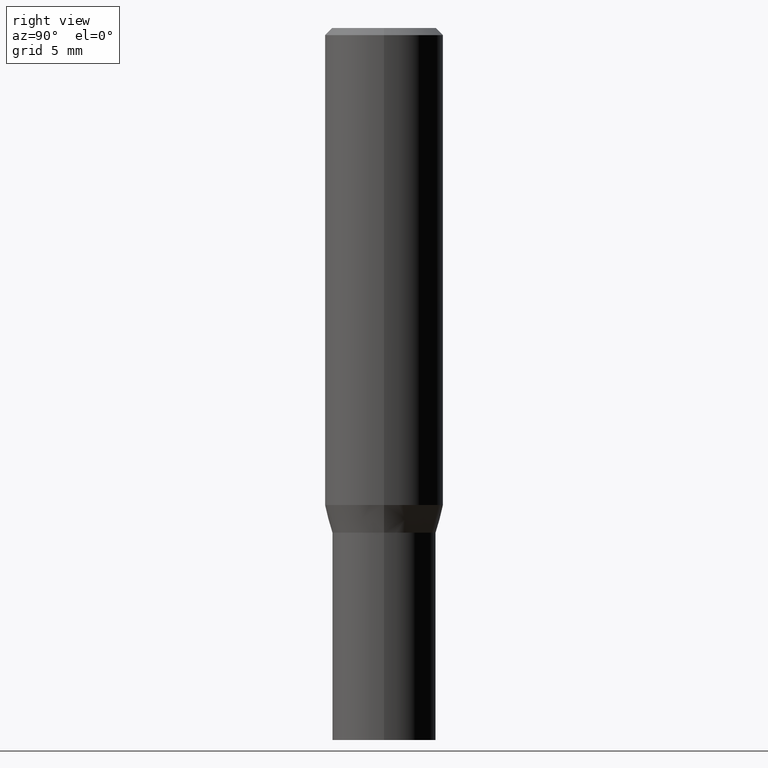
[diagram: clean part render]
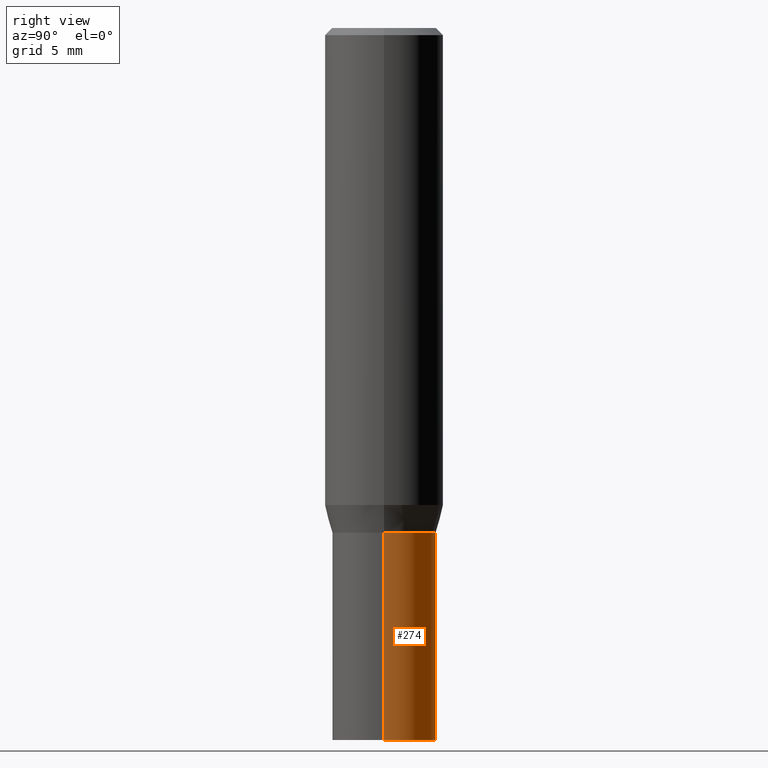
[diagram: same view with one face highlighted and labeled with its STEP entity id]
A machine part, right view. The second image highlights one B-rep face of the part: STEP entity #274.
In plain terms, the highlighted cylindrical surface (partial cylindrical patch) has radius 2.7788 mm, axis along (-0, 0, 1).
Its self-contained STEP definition (entity closure, byte-faithful):
#2 = AXIS2_PLACEMENT_3D ( 'NONE', #423, #131, #61 ) ;
#6 = ORIENTED_EDGE ( 'NONE', *, *, #158, .F. ) ;
#7 = CIRCLE ( 'NONE', #408, 0.1093999999999999972 ) ;
#10 = ORIENTED_EDGE ( 'NONE', *, *, #109, .F. ) ;
#26 = ORIENTED_EDGE ( 'NONE', *, *, #228, .T. ) ;
#30 = VECTOR ( 'NONE', #127, 39.37007874015748143 ) ;
#42 = CIRCLE ( 'NONE', #155, 0.1093999999999999972 ) ;
#47 = CARTESIAN_POINT ( 'NONE',  ( -0.1093999999999999972, 7.773337529215495838E-16, -5.381314988738867416E-30 ) ) ;
#61 = DIRECTION ( 'NONE',  ( 1.000000000000000000, -6.982962677686266711E-15, 4.876176775795935793E-29 ) ) ;
#68 = VERTEX_POINT ( 'NONE', #370 ) ;
#87 = CARTESIAN_POINT ( 'NONE',  ( 2.599533340974800436E-29, -3.711444663190264104E-15, -1.063000000000000167 ) ) ;
#107 = CARTESIAN_POINT ( 'NONE',  ( 3.668203209277704895E-29, -5.237222008264718177E-15, -1.500000000000000222 ) ) ;
#109 = EDGE_CURVE ( 'NONE', #232, #129, #226, .T. ) ;
#125 = DIRECTION ( 'NONE',  ( 1.000000000000000000, -6.982962677686269866E-15, 0.000000000000000000 ) ) ;
#127 = DIRECTION ( 'NONE',  ( -2.445468806185136877E-29, 3.491481338843145188E-15, 1.000000000000000000 ) ) ;
#129 = VERTEX_POINT ( 'NONE', #153 ) ;
#131 = DIRECTION ( 'NONE',  ( -2.445468806185136597E-29, 3.491481338843145583E-15, 1.000000000000000000 ) ) ;
#153 = CARTESIAN_POINT ( 'NONE',  ( 0.1093999999999999972, -4.475380780129141676E-15, -1.063000000000000167 ) ) ;
#155 = AXIS2_PLACEMENT_3D ( 'NONE', #107, #393, #430 ) ;
#158 = EDGE_CURVE ( 'NONE', #129, #432, #7, .T. ) ;
#189 = CARTESIAN_POINT ( 'NONE',  ( 0.1093999999999999972, -6.001158125203596537E-15, -1.500000000000000222 ) ) ;
#197 = DIRECTION ( 'NONE',  ( -2.445468806185136597E-29, 3.491481338843145583E-15, 1.000000000000000000 ) ) ;
#203 = ORIENTED_EDGE ( 'NONE', *, *, #347, .T. ) ;
#226 = LINE ( 'NONE', #254, #371 ) ;
#227 = LINE ( 'NONE', #47, #30 ) ;
#228 = EDGE_CURVE ( 'NONE', #68, #432, #227, .T. ) ;
#231 = FACE_OUTER_BOUND ( 'NONE', #419, .T. ) ;
#232 = VERTEX_POINT ( 'NONE', #189 ) ;
#254 = CARTESIAN_POINT ( 'NONE',  ( 0.1093999999999999972, -7.639361169388775718E-16, 5.334537392720753909E-30 ) ) ;
#274 = ADVANCED_FACE ( 'NONE', ( #231 ), #389, .T. ) ;
#347 = EDGE_CURVE ( 'NONE', #232, #68, #42, .T. ) ;
#349 = CARTESIAN_POINT ( 'NONE',  ( -0.1093999999999999972, -3.696999582805941951E-15, -1.063000000000000167 ) ) ;
#367 = DIRECTION ( 'NONE',  ( -2.445468806185136877E-29, 3.491481338843145188E-15, 1.000000000000000000 ) ) ;
#370 = CARTESIAN_POINT ( 'NONE',  ( -0.1093999999999999972, -3.696999582805941951E-15, -1.500000000000000222 ) ) ;
#371 = VECTOR ( 'NONE', #367, 39.37007874015748143 ) ;
#389 = CYLINDRICAL_SURFACE ( 'NONE', #2, 0.1093999999999999972 ) ;
#393 = DIRECTION ( 'NONE',  ( -2.445468806185136597E-29, 3.491481338843145583E-15, 1.000000000000000000 ) ) ;
#408 = AXIS2_PLACEMENT_3D ( 'NONE', #87, #197, #125 ) ;
#419 = EDGE_LOOP ( 'NONE', ( #203, #26, #6, #10 ) ) ;
#423 = CARTESIAN_POINT ( 'NONE',  ( 0.000000000000000000, 0.000000000000000000, 0.000000000000000000 ) ) ;
#430 = DIRECTION ( 'NONE',  ( 1.000000000000000000, -6.982962677686269866E-15, 0.000000000000000000 ) ) ;
#432 = VERTEX_POINT ( 'NONE', #349 ) ;